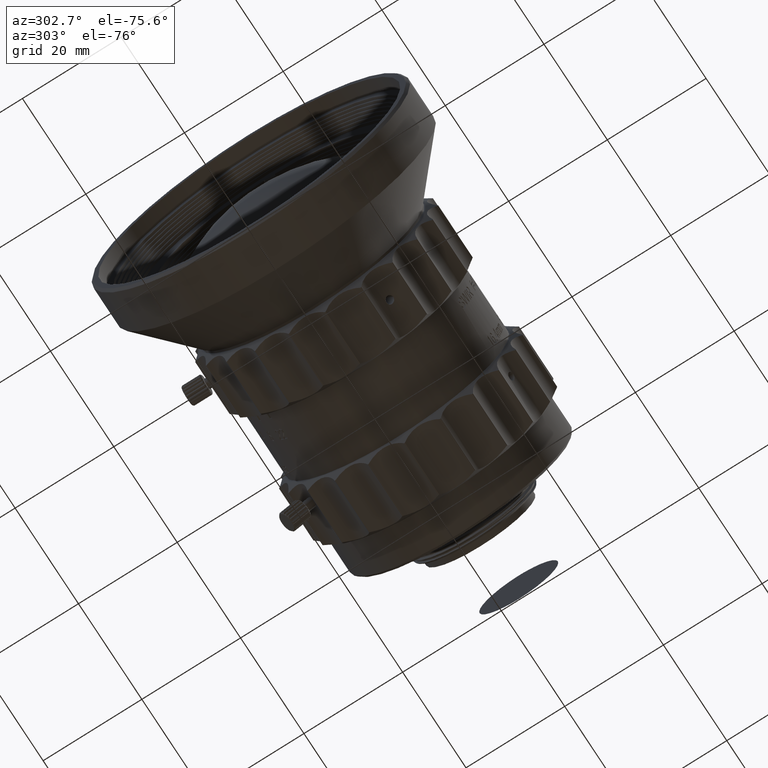
[diagram: clean part render]
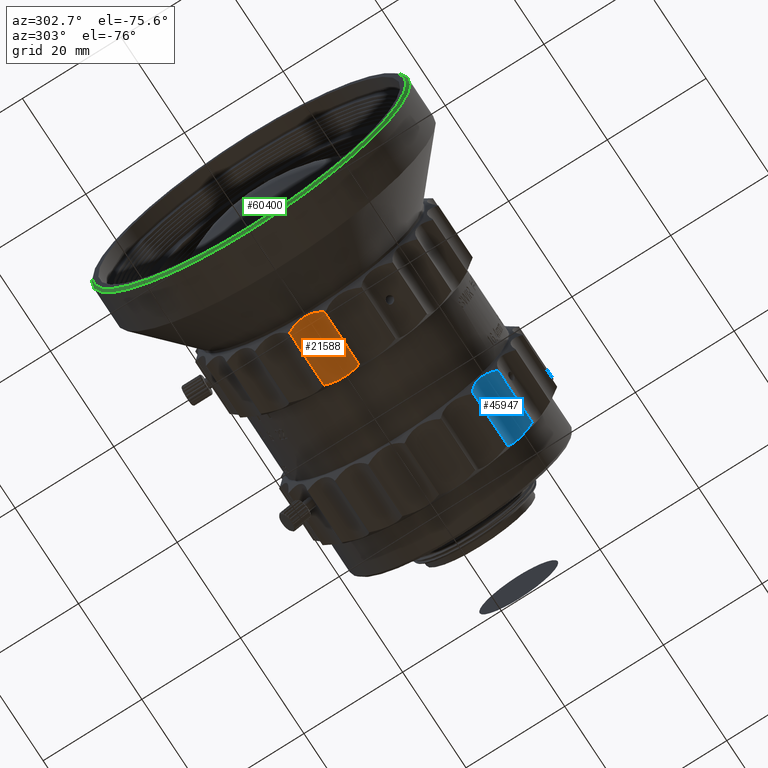
[diagram: same view with three faces highlighted in distinct colors, each labeled with its STEP entity id]
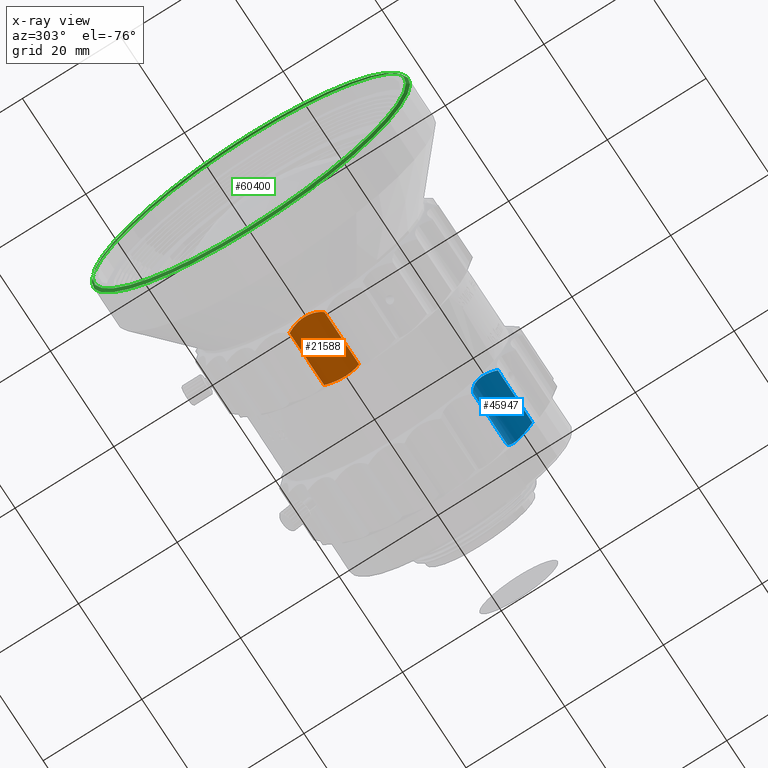
[diagram: x-ray of the same camera — body ghosted, the three highlighted faces saturated]
A machine part, auxiliary view with three faces highlighted in distinct colors.
The next image is the same camera in x-ray (body ghosted, the three faces saturated) — at least one of them is partly hidden behind the body in this view.
Their STEP definitions:

[orange] entity #21588 — the highlighted cylindrical surface (edge-blend (fillet) strip) has radius 6 mm, axis along (1, -0, -0).
#1811 = CARTESIAN_POINT ( 'NONE',  ( -19.28376266582890963, 1.094821565257457330, -23.30999456150371429 ) ) ;
#2648 = CARTESIAN_POINT ( 'NONE',  ( -19.29823303271290058, 2.068439404907434831, -23.21709495747146335 ) ) ;
#3290 = CYLINDRICAL_SURFACE ( 'NONE', #60561, 6.000000000000019540 ) ;
#3296 = ORIENTED_EDGE ( 'NONE', *, *, #27182, .F. ) ;
#4567 = VERTEX_POINT ( 'NONE', #75521 ) ;
#7719 = CARTESIAN_POINT ( 'NONE',  ( -6.770117167895164378, 1.410201794958353627, -23.26669603809764908 ) ) ;
#8134 = CARTESIAN_POINT ( 'NONE',  ( -6.858549926232954341, 3.026896952106939320, -23.26806833645079209 ) ) ;
#9007 = CARTESIAN_POINT ( 'NONE',  ( -19.30311022765866014, 1.414407209902567075, -23.25937489295565186 ) ) ;
#9414 = CARTESIAN_POINT ( 'NONE',  ( -19.30314911792414279, 1.903633257928224465, -23.22265875275060054 ) ) ;
#13636 = CARTESIAN_POINT ( 'NONE',  ( -6.803845782076885840, 0.9318290990786625150, -23.34919472177131539 ) ) ;
#13741 = DIRECTION ( 'NONE',  ( 1.000000000000000000, -0.000000000000000000, -0.000000000000000000 ) ) ;
#14050 = CARTESIAN_POINT ( 'NONE',  ( -7.060036110558757017, -0.4264157096659902391, -23.80897931532427236 ) ) ;
#14481 = CARTESIAN_POINT ( 'NONE',  ( -6.783930870498505961, 2.385502745856497686, -23.21263758008427303 ) ) ;
#16591 = CARTESIAN_POINT ( 'NONE',  ( -18.60971391810611664, 5.103841056121825481, -23.96453669903311123 ) ) ;
#20683 = EDGE_CURVE ( 'NONE', #26968, #59077, #43472, .T. ) ;
#21255 = CARTESIAN_POINT ( 'NONE',  ( -7.058235809220622770, 3.963350720724987397, -23.47747509259691157 ) ) ;
#21588 = ADVANCED_FACE ( 'NONE', ( #60835 ), #3290, .F. ) ;
#21712 = CARTESIAN_POINT ( 'NONE',  ( -19.15314829067536451, 3.348706129946736443, -23.32243777989819478 ) ) ;
#22122 = CARTESIAN_POINT ( 'NONE',  ( -19.00869386225523527, 3.968141445075382467, -23.47883775289959019 ) ) ;
#25563 = CARTESIAN_POINT ( 'NONE',  ( -7.581388062305621567, 5.361955301353440007, -24.12532058141750468 ) ) ;
#25949 = CARTESIAN_POINT ( 'NONE',  ( -18.48676466489618875, -1.706373955268736697, -24.65501841034766173 ) ) ;
#26351 = CARTESIAN_POINT ( 'NONE',  ( -7.581388062305621567, 5.361955301353440007, -24.12532058141750468 ) ) ;
#26763 = CARTESIAN_POINT ( 'NONE',  ( -6.915593155832326921, 0.1619058124635284757, -23.56207794090352436 ) ) ;
#26968 = VERTEX_POINT ( 'NONE', #25563 ) ;
#27182 = EDGE_CURVE ( 'NONE', #59077, #61773, #63483, .T. ) ;
#27410 = VECTOR ( 'NONE', #30782, 1000.000000000000000 ) ;
#27597 = CARTESIAN_POINT ( 'NONE',  ( -7.144970362342681902, 4.259378981352758942, -23.57783774062653137 ) ) ;
#27642 = CARTESIAN_POINT ( 'NONE',  ( -19.15177904041820511, 0.1580825262423468103, -23.56345350524449955 ) ) ;
#28021 = CARTESIAN_POINT ( 'NONE',  ( -6.764834948883483356, 2.062346874845768063, -23.21053206159506743 ) ) ;
#28474 = CARTESIAN_POINT ( 'NONE',  ( -19.20845073826500382, 3.034064890137460946, -23.26913258827243070 ) ) ;
#30782 = DIRECTION ( 'NONE',  ( -1.000000000000000000, 0.000000000000000000, 0.000000000000000000 ) ) ;
#33210 = LINE ( 'NONE', #41534, #55704 ) ;
#34358 = CARTESIAN_POINT ( 'NONE',  ( -7.581388170017189232, -1.706374441744763271, -24.65501882570403680 ) ) ;
#35221 = CARTESIAN_POINT ( 'NONE',  ( -19.20854962657084997, 0.4681794873092576248, -23.46128119402459333 ) ) ;
#36785 = CARTESIAN_POINT ( 'NONE',  ( -18.48676451398150178, 5.361955301353440007, -24.12532058141750468 ) ) ;
#37114 = CARTESIAN_POINT ( 'NONE',  ( -21.53407628814364827, 5.361955301353440007, -24.12532058141750468 ) ) ;
#41120 = CARTESIAN_POINT ( 'NONE',  ( -7.147715765834331769, -0.7056653549379617862, -23.95382136754179214 ) ) ;
#41167 = CARTESIAN_POINT ( 'NONE',  ( -18.92093965184798421, 4.266354999002891724, -23.58050463815340336 ) ) ;
#41534 = CARTESIAN_POINT ( 'NONE',  ( -21.53407628814364827, -1.706374115684829773, -24.65501854731259712 ) ) ;
#41580 = CARTESIAN_POINT ( 'NONE',  ( -19.26471480791996882, 2.554490997145808961, -23.22702793588380743 ) ) ;
#41992 = CARTESIAN_POINT ( 'NONE',  ( -18.73263538993421307, -1.243891231104572670, -24.26014752870847246 ) ) ;
#43472 = LINE ( 'NONE', #37114, #27410 ) ;
#46530 = ORIENTED_EDGE ( 'NONE', *, *, #48962, .F. ) ;
#46637 = CARTESIAN_POINT ( 'NONE',  ( -6.860250280259557520, 0.4646229657176764172, -23.46244815062663136 ) ) ;
#47099 = CARTESIAN_POINT ( 'NONE',  ( -18.93473883806432667, -0.7239837799582151678, -23.93432219581493214 ) ) ;
#47734 = DIRECTION ( 'NONE',  ( 0.000000000000000000, 0.000000000000000000, -1.000000000000000000 ) ) ;
#48962 = EDGE_CURVE ( 'NONE', #61773, #4567, #33210, .T. ) ;
#52714 = EDGE_LOOP ( 'NONE', ( #61460, #72290, #46530, #3296 ) ) ;
#53373 = CARTESIAN_POINT ( 'NONE',  ( -6.914953287615065669, 3.348030184580312429, -23.32242153776705962 ) ) ;
#55704 = VECTOR ( 'NONE', #13741, 1000.000000000000000 ) ;
#59077 = VERTEX_POINT ( 'NONE', #36785 ) ;
#60150 = CARTESIAN_POINT ( 'NONE',  ( -7.458604242470844525, -1.475418029724394842, -24.45782659203253218 ) ) ;
#60561 = AXIS2_PLACEMENT_3D ( 'NONE', #74367, #67177, #47734 ) ;
#60835 = FACE_OUTER_BOUND ( 'NONE', #52714, .T. ) ;
#61460 = ORIENTED_EDGE ( 'NONE', *, *, #20683, .F. ) ;
#61773 = VERTEX_POINT ( 'NONE', #25949 ) ;
#63483 = B_SPLINE_CURVE_WITH_KNOTS ( 'NONE', 3,
 ( #66521, #16591, #74132, #41167, #22122, #21712, #28474, #41580, #67348, #2648, #9414, #9007, #1811, #35221, #27642, #47099, #41992, #72884 ),
 .UNSPECIFIED., .F., .F.,
 ( 4, 2, 2, 2, 2, 2, 2, 2, 4 ),
 ( 1.734723475976807094E-18, 0.0009722442010624990447, 0.001944488402124996355, 0.002916732603187493448, 0.003402854703718743296, 0.003888976804249992709, 0.004861221005312492405, 0.005833465206374990365, 0.007777953608499988888 ),
 .UNSPECIFIED. ) ;
#66072 = CARTESIAN_POINT ( 'NONE',  ( -6.789494973346481999, 1.089762576644232484, -23.31750420859386352 ) ) ;
#66521 = CARTESIAN_POINT ( 'NONE',  ( -18.48676451398150178, 5.361955301353440007, -24.12532058141750468 ) ) ;
#66898 = CARTESIAN_POINT ( 'NONE',  ( -7.345126081358676728, 4.830074044859220983, -23.82139574850496544 ) ) ;
#67177 = DIRECTION ( 'NONE',  ( 1.000000000000000000, -0.000000000000000000, -0.000000000000000000 ) ) ;
#67348 = CARTESIAN_POINT ( 'NONE',  ( -19.27900542490754532, 2.393359026852141636, -23.21933194528079625 ) ) ;
#71999 = CARTESIAN_POINT ( 'NONE',  ( -7.346802908103849283, -1.229426863243632928, -24.27791414075287690 ) ) ;
#72290 = ORIENTED_EDGE ( 'NONE', *, *, #79880, .F. ) ;
#72420 = CARTESIAN_POINT ( 'NONE',  ( -6.765109058784023688, 1.573728581840332819, -23.24752754856384129 ) ) ;
#72884 = CARTESIAN_POINT ( 'NONE',  ( -18.48676466489618875, -1.706373955268736697, -24.65501841034766173 ) ) ;
#74132 = CARTESIAN_POINT ( 'NONE',  ( -18.72165103187011681, 4.833403270216874326, -23.82313255381443184 ) ) ;
#74367 = CARTESIAN_POINT ( 'NONE',  ( -21.53407628814364827, 2.189591742082129588, -29.21807125740859234 ) ) ;
#75521 = CARTESIAN_POINT ( 'NONE',  ( -7.581388170017189232, -1.706374441744763271, -24.65501882570403680 ) ) ;
#79638 = CARTESIAN_POINT ( 'NONE',  ( -7.458497120320579654, 5.103963788811255675, -23.96461315137414516 ) ) ;
#79880 = EDGE_CURVE ( 'NONE', #4567, #26968, #83071, .T. ) ;
#83071 = B_SPLINE_CURVE_WITH_KNOTS ( 'NONE', 3,
 ( #34358, #60150, #71999, #41120, #14050, #26763, #46637, #13636, #66072, #7719, #72420, #28021, #14481, #8134, #53373, #21255, #27597, #66898, #79638, #26351 ),
 .UNSPECIFIED., .F., .F.,
 ( 4, 2, 2, 2, 2, 2, 2, 2, 2, 4 ),
 ( 4.569154094445453079E-10, 0.0009709373778555714348, 0.001941874298795733282, 0.002912811219735895671, 0.003398279680205976323, 0.003883748140676057409, 0.004854685061616219148, 0.005825621982556383055, 0.006796558903496545227, 0.007767495824436708267 ),
 .UNSPECIFIED. ) ;

[blue] entity #45947 — the highlighted cylindrical surface (edge-blend (fillet) strip) has radius 6 mm, axis along (1, -0, 0).
#1271 = CARTESIAN_POINT ( 'NONE',  ( 8.213221759573626102, -14.65276969587147526, -19.90170861533254865 ) ) ;
#1684 = CARTESIAN_POINT ( 'NONE',  ( 8.090437755251000951, -14.70125720104970313, -19.60191747549917807 ) ) ;
#2712 = CARTESIAN_POINT ( 'NONE',  ( 19.93487711555169284, -16.48199284140565624, -16.47021771080798658 ) ) ;
#4950 = CARTESIAN_POINT ( 'NONE',  ( -6.834090105243456392, -19.69906900022054330, -14.92408584582277875 ) ) ;
#5875 = CARTESIAN_POINT ( 'NONE',  ( 19.11859770046667606, -19.69907002819242336, -14.92408569397855445 ) ) ;
#9076 = CARTESIAN_POINT ( 'NONE',  ( 19.92986899700733261, -16.60394918372186268, -16.35960533123849459 ) ) ;
#10459 = LINE ( 'NONE', #4950, #64180 ) ;
#10645 = LINE ( 'NONE', #74104, #45533 ) ;
#10839 = ORIENTED_EDGE ( 'NONE', *, *, #61859, .F. ) ;
#11294 = EDGE_CURVE ( 'NONE', #36946, #60852, #68375, .T. ) ;
#13745 = CARTESIAN_POINT ( 'NONE',  ( 19.78503294280911717, -15.37188283470795547, -17.85636768100070171 ) ) ;
#15421 = CARTESIAN_POINT ( 'NONE',  ( 19.83973581687718735, -17.37313064374254523, -15.77582601140765917 ) ) ;
#16149 = DIRECTION ( 'NONE',  ( -1.000000000000000000, 2.059913263988547804E-23, -7.205536881789808455E-23 ) ) ;
#16244 = CARTESIAN_POINT ( 'NONE',  ( 19.11859812059459784, -14.65276973167191343, -19.90170839398533786 ) ) ;
#16351 = CARTESIAN_POINT ( 'NONE',  ( -6.834090105243456392, -20.57579934149113399, -20.85968555509359135 ) ) ;
#17207 = CARTESIAN_POINT ( 'NONE',  ( 7.690069418788017863, -18.21353363599185826, -15.33516150522840071 ) ) ;
#18050 = CARTESIAN_POINT ( 'NONE',  ( 8.213221668917618956, -19.69906900022054330, -14.92408584582277875 ) ) ;
#20098 = ORIENTED_EDGE ( 'NONE', *, *, #56332, .F. ) ;
#20749 = CARTESIAN_POINT ( 'NONE',  ( 8.090330727697809365, -19.39837995519748048, -14.96849975881755412 ) ) ;
#21361 = CARTESIAN_POINT ( 'NONE',  ( 19.35318301853926215, -19.10135086637768964, -15.03552533479857090 ) ) ;
#21776 = CARTESIAN_POINT ( 'NONE',  ( 19.63994990752662773, -18.22006359485775562, -15.33227388847294925 ) ) ;
#23018 = CARTESIAN_POINT ( 'NONE',  ( 19.35486012532300037, -14.77346027521678096, -19.30112380659080529 ) ) ;
#23561 = CARTESIAN_POINT ( 'NONE',  ( 7.415764478896164746, -16.83917548574223133, -16.15423584936174350 ) ) ;
#23863 = CARTESIAN_POINT ( 'NONE',  ( 19.24148907591087365, -14.70129949865053476, -19.60165609791651775 ) ) ;
#23969 = CARTESIAN_POINT ( 'NONE',  ( 8.213221759573626102, -14.65276969587147526, -19.90170861533254865 ) ) ;
#27106 = CARTESIAN_POINT ( 'NONE',  ( 7.976959689233299677, -19.09688716690718380, -15.03653588178326572 ) ) ;
#27521 = CARTESIAN_POINT ( 'NONE',  ( 7.490383535504236079, -17.36405715816230710, -15.78146471307127818 ) ) ;
#31115 = CARTESIAN_POINT ( 'NONE',  ( 8.213221668917618956, -19.69906900022054330, -14.92408584582277875 ) ) ;
#35832 = CARTESIAN_POINT ( 'NONE',  ( 7.401950773499978986, -16.13056387130344405, -16.82654815292408301 ) ) ;
#36946 = VERTEX_POINT ( 'NONE', #5875 ) ;
#36954 = CARTESIAN_POINT ( 'NONE',  ( 19.55501586336693975, -14.96515505941196622, -18.71098266639960173 ) ) ;
#41235 = CARTESIAN_POINT ( 'NONE',  ( 19.89614035069345022, -16.98062410795952815, -16.05339866165209983 ) ) ;
#41557 = B_SPLINE_CURVE_WITH_KNOTS ( 'NONE', 3,
 ( #1271, #1684, #42187, #61625, #47383, #74325, #67965, #59651, #68802, #35832, #55679, #81521, #23561, #27521, #75152, #17207, #43023, #27106, #20749, #18050 ),
 .UNSPECIFIED., .F., .F.,
 ( 4, 2, 2, 2, 2, 2, 2, 2, 2, 4 ),
 ( 2.389596767391302494E-10, 0.0009709371541443985844, 0.001941874069329119603, 0.002912810984513840729, 0.003398279442106201618, 0.003883747899698561639, 0.004854684814883289921, 0.005825621730068019505, 0.006796558645252747353, 0.007767495560437476070 ),
 .UNSPECIFIED. ) ;
#42187 = CARTESIAN_POINT ( 'NONE',  ( 7.978636500012831867, -14.77238884728233792, -19.30557256191366378 ) ) ;
#43023 = CARTESIAN_POINT ( 'NONE',  ( 7.776803971690090300, -18.50417491640537193, -15.22012656707911660 ) ) ;
#45533 = VECTOR ( 'NONE', #16149, 1000.000000000000000 ) ;
#45947 = ADVANCED_FACE ( 'NONE', ( #67531 ), #68362, .F. ) ;
#47383 = CARTESIAN_POINT ( 'NONE',  ( 7.691869708451428700, -15.08118494341278115, -18.42843418139109701 ) ) ;
#52227 = CARTESIAN_POINT ( 'NONE',  ( 19.91605534178188464, -15.92199053058902436, -17.05893847720309253 ) ) ;
#54614 = AXIS2_PLACEMENT_3D ( 'NONE', #16351, #80256, #62434 ) ;
#55679 = CARTESIAN_POINT ( 'NONE',  ( 7.396942664915247434, -16.24283689701137590, -16.70611888703325931 ) ) ;
#56332 = EDGE_CURVE ( 'NONE', #60852, #81057, #10645, .T. ) ;
#59000 = CARTESIAN_POINT ( 'NONE',  ( 19.64175042107337887, -15.08416156567620270, -18.42194483843429254 ) ) ;
#59651 = CARTESIAN_POINT ( 'NONE',  ( 7.435679385732583135, -15.81922478337496862, -17.19899202388102211 ) ) ;
#60667 = CARTESIAN_POINT ( 'NONE',  ( 19.78439291525714694, -17.64722619000215786, -15.61323628566972843 ) ) ;
#60852 = VERTEX_POINT ( 'NONE', #77498 ) ;
#61625 = CARTESIAN_POINT ( 'NONE',  ( 7.779549361119210360, -14.96200290915658293, -18.71956168574133983 ) ) ;
#61859 = EDGE_CURVE ( 'NONE', #81057, #83781, #41557, .T. ) ;
#62434 = DIRECTION ( 'NONE',  ( 0.000000000000000000, -0.5262185795805698341, -0.8503493438018325801 ) ) ;
#62472 = DIRECTION ( 'NONE',  ( 1.000000000000000000, -2.059913263988547804E-23, 7.205536881789808455E-23 ) ) ;
#64180 = VECTOR ( 'NONE', #62472, 1000.000000000000000 ) ;
#67011 = CARTESIAN_POINT ( 'NONE',  ( 19.91049117072156704, -16.85291001521582288, -16.15156376809521177 ) ) ;
#67531 = FACE_OUTER_BOUND ( 'NONE', #75967, .T. ) ;
#67965 = CARTESIAN_POINT ( 'NONE',  ( 7.492083881808698109, -15.53630009054844230, -17.58765836613782696 ) ) ;
#68362 = CYLINDRICAL_SURFACE ( 'NONE', #54614, 6.000000000000021316 ) ;
#68375 = B_SPLINE_CURVE_WITH_KNOTS ( 'NONE', 3,
 ( #79745, #79328, #21361, #73368, #21776, #60667, #15421, #41235, #67011, #9076, #2712, #71694, #52227, #78066, #13745, #59000, #36954, #23018, #23863, #16244 ),
 .UNSPECIFIED., .F., .F.,
 ( 4, 2, 2, 2, 2, 2, 2, 2, 2, 4 ),
 ( 1.107416664198368121E-09, 0.0009709381320560698213, 0.001941875156695475413, 0.002912812181334881005, 0.003398280693654588246, 0.003883749205974295054, 0.004854686230613709970, 0.005825623255253120115, 0.006796560279892531996, 0.007767497304531942141 ),
 .UNSPECIFIED. ) ;
#68802 = CARTESIAN_POINT ( 'NONE',  ( 7.421328577694770168, -15.91913060267084745, -17.07263499468549028 ) ) ;
#71255 = EDGE_CURVE ( 'NONE', #83781, #36946, #10459, .T. ) ;
#71694 = CARTESIAN_POINT ( 'NONE',  ( 19.93515125043917280, -16.13286778527551846, -16.81406104812063163 ) ) ;
#73368 = CARTESIAN_POINT ( 'NONE',  ( 19.55227021980423174, -18.51279684838667094, -15.21709206531638792 ) ) ;
#74104 = CARTESIAN_POINT ( 'NONE',  ( -6.834090105243456392, -14.65276973167191343, -19.90170839398533786 ) ) ;
#74325 = CARTESIAN_POINT ( 'NONE',  ( 7.547426755940733756, -15.36996997889210981, -17.85950034861016533 ) ) ;
#75152 = CARTESIAN_POINT ( 'NONE',  ( 7.546786896920599119, -17.64406728860007334, -15.61510621915368446 ) ) ;
#75719 = ORIENTED_EDGE ( 'NONE', *, *, #71255, .F. ) ;
#75967 = EDGE_LOOP ( 'NONE', ( #20098, #82837, #75719, #10839 ) ) ;
#77498 = CARTESIAN_POINT ( 'NONE',  ( 19.11859812059459784, -14.65276973167191343, -19.90170839398533786 ) ) ;
#78066 = CARTESIAN_POINT ( 'NONE',  ( 19.84143630161457139, -15.54206242368937829, -17.57866323866795710 ) ) ;
#79328 = CARTESIAN_POINT ( 'NONE',  ( 19.24138181829642136, -19.39864241273792800, -14.96846093880458106 ) ) ;
#79745 = CARTESIAN_POINT ( 'NONE',  ( 19.11859770046667606, -19.69907002819242336, -14.92408569397855445 ) ) ;
#80256 = DIRECTION ( 'NONE',  ( 1.000000000000000000, -2.059913263988547804E-23, 7.205536881789808455E-23 ) ) ;
#81057 = VERTEX_POINT ( 'NONE', #23969 ) ;
#81521 = CARTESIAN_POINT ( 'NONE',  ( 7.396668556417364648, -16.59143163375758689, -16.36173797705929900 ) ) ;
#82837 = ORIENTED_EDGE ( 'NONE', *, *, #11294, .F. ) ;
#83781 = VERTEX_POINT ( 'NONE', #31115 ) ;

[green] entity #60400 — the highlighted conical surface has half-angle 45 deg.
#1800 = CARTESIAN_POINT ( 'NONE',  ( -39.05409064541119335, 0.000000000000000000, 0.000000000000000000 ) ) ;
#3082 = EDGE_CURVE ( 'NONE', #64491, #64491, #33374, .T. ) ;
#4723 = DIRECTION ( 'NONE',  ( 1.000000000000000000, 0.000000000000000000, 0.000000000000000000 ) ) ;
#5616 = CIRCLE ( 'NONE', #15046, 32.25000067651262725 ) ;
#5940 = EDGE_LOOP ( 'NONE', ( #81051 ) ) ;
#7915 = CARTESIAN_POINT ( 'NONE',  ( -39.05409064541119335, 0.000000000000000000, 32.25000067651262725 ) ) ;
#10412 = AXIS2_PLACEMENT_3D ( 'NONE', #53743, #40238, #67265 ) ;
#15046 = AXIS2_PLACEMENT_3D ( 'NONE', #1800, #4723, #18264 ) ;
#18264 = DIRECTION ( 'NONE',  ( 0.000000000000000000, 0.000000000000000000, 1.000000000000000000 ) ) ;
#30257 = FACE_BOUND ( 'NONE', #33721, .T. ) ;
#31529 = CARTESIAN_POINT ( 'NONE',  ( -39.55408963958237223, 0.000000000000000000, -31.75000067651306779 ) ) ;
#33374 = CIRCLE ( 'NONE', #10412, 31.75000067651306779 ) ;
#33721 = EDGE_LOOP ( 'NONE', ( #54167 ) ) ;
#37009 = DIRECTION ( 'NONE',  ( 1.000000000000000000, 0.000000000000000000, -0.000000000000000000 ) ) ;
#37428 = FACE_OUTER_BOUND ( 'NONE', #5940, .T. ) ;
#38384 = VERTEX_POINT ( 'NONE', #7915 ) ;
#40238 = DIRECTION ( 'NONE',  ( 1.000000000000000000, 0.000000000000000000, -0.000000000000000000 ) ) ;
#42228 = CONICAL_SURFACE ( 'NONE', #77366, 32.25000067651262725, 0.7853991692268355029 ) ;
#53743 = CARTESIAN_POINT ( 'NONE',  ( -39.55408963958237223, 0.000000000000000000, 0.000000000000000000 ) ) ;
#54167 = ORIENTED_EDGE ( 'NONE', *, *, #3082, .T. ) ;
#56033 = CARTESIAN_POINT ( 'NONE',  ( -39.05409064541119335, 0.000000000000000000, 0.000000000000000000 ) ) ;
#60400 = ADVANCED_FACE ( 'NONE', ( #37428, #30257 ), #42228, .T. ) ;
#62198 = EDGE_CURVE ( 'NONE', #38384, #38384, #5616, .T. ) ;
#64491 = VERTEX_POINT ( 'NONE', #31529 ) ;
#67265 = DIRECTION ( 'NONE',  ( 0.000000000000000000, 0.000000000000000000, -1.000000000000000000 ) ) ;
#76762 = DIRECTION ( 'NONE',  ( 0.000000000000000000, 0.000000000000000000, -1.000000000000000000 ) ) ;
#77366 = AXIS2_PLACEMENT_3D ( 'NONE', #56033, #37009, #76762 ) ;
#81051 = ORIENTED_EDGE ( 'NONE', *, *, #62198, .F. ) ;